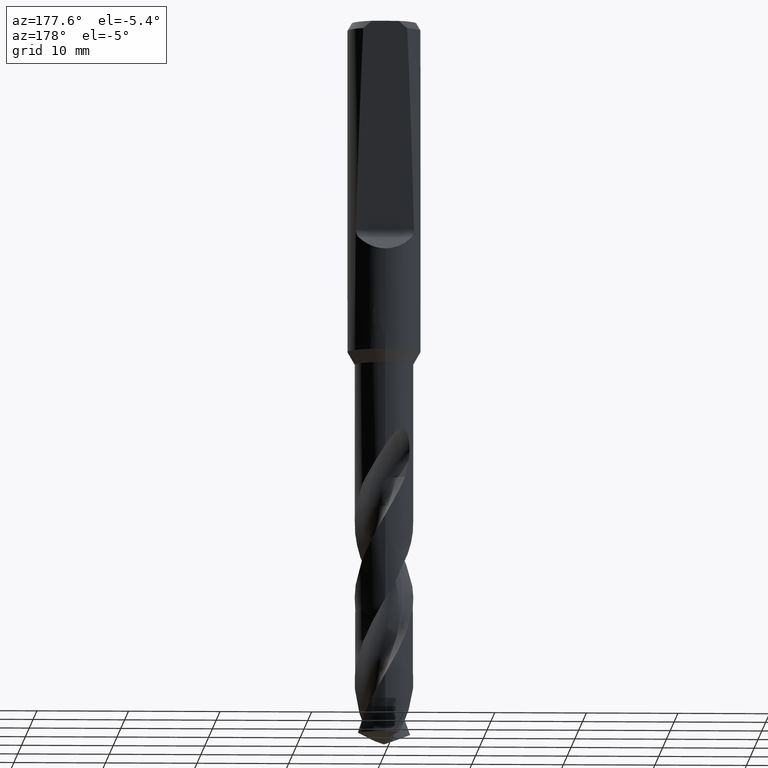
[diagram: clean part render]
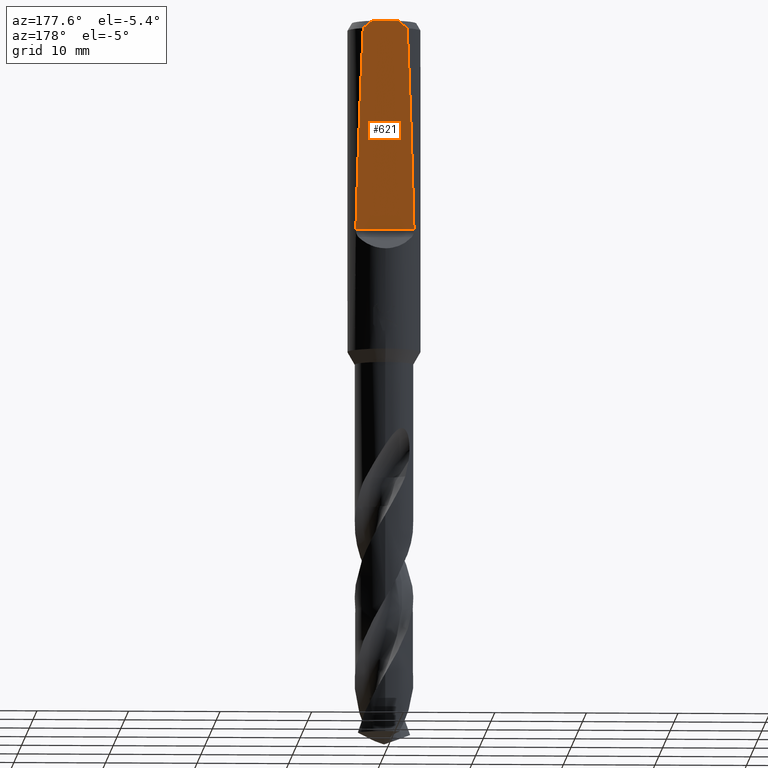
[diagram: same view with one face highlighted and labeled with its STEP entity id]
A machine part, auxiliary view. The second image highlights one B-rep face of the part: STEP entity #621.
In plain terms, the highlighted planar face has unit normal (0, -0.9994, 0.0349).
Its self-contained STEP definition (entity closure, byte-faithful):
#317=VERTEX_POINT('',#880);
#353=EDGE_CURVE('',#579,#459,#920,.T.);
#383=EDGE_CURVE('',#317,#719,#955,.T.);
#459=VERTEX_POINT('',#1037);
#531=VERTEX_POINT('',#1115);
#579=VERTEX_POINT('',#1167);
#621=ADVANCED_FACE('',(#1212),#1213,.F.);
#629=EDGE_CURVE('',#531,#711,#1221,.T.);
#641=EDGE_CURVE('',#711,#579,#1235,.T.);
#675=EDGE_CURVE('',#719,#531,#1271,.T.);
#711=VERTEX_POINT('',#1312);
#719=VERTEX_POINT('',#1320);
#823=EDGE_CURVE('',#459,#317,#1435,.T.);
#880=CARTESIAN_POINT('',(3.17557583065469,2.43222493691719,-22.8044492009967));
#920=ELLIPSE('',#2510,114.614833391376,4.0);
#955=ELLIPSE('',#3223,114.614833391376,4.0);
#1037=CARTESIAN_POINT('',(-3.17557583065469,2.43222493691719,-22.8044492009967));
#1115=CARTESIAN_POINT('',(1.44727416204323,3.22857385085146,0.0));
#1167=CARTESIAN_POINT('',(-2.39915011791252,3.20063723525806,-0.799999999999997));
#1212=FACE_OUTER_BOUND('',#4810,.T.);
#1213=PLANE('',#4811);
#1221=LINE('',#4862,#4863);
#1235=(B_SPLINE_CURVE(2,(#5094,#5095,#5096),.UNSPECIFIED.,.F.,.F.)B_SPLINE_CURVE_WITH_KNOTS((3,3),(0.0,1.24509248814237),.UNSPECIFIED.)RATIONAL_B_SPLINE_CURVE((1.0,1.00726161475639,1.0))BOUNDED_CURVE()REPRESENTATION_ITEM('')GEOMETRIC_REPRESENTATION_ITEM()CURVE());
#1271=(B_SPLINE_CURVE(2,(#5298,#5299,#5300),.UNSPECIFIED.,.F.,.F.)B_SPLINE_CURVE_WITH_KNOTS((3,3),(0.0,1.24509248814237),.UNSPECIFIED.)RATIONAL_B_SPLINE_CURVE((1.0,1.00726161475639,1.0))BOUNDED_CURVE()REPRESENTATION_ITEM('')GEOMETRIC_REPRESENTATION_ITEM()CURVE());
#1312=CARTESIAN_POINT('',(-1.44727416204323,3.22857385085146,0.0));
#1320=CARTESIAN_POINT('',(2.39915011791252,3.20063723525806,-0.799999999999997));
#1435=LINE('',#7474,#7475);
#2510=AXIS2_PLACEMENT_3D('',#7595,#7596,#7597);
#3223=AXIS2_PLACEMENT_3D('',#7649,#7650,#7651);
#4810=EDGE_LOOP('',(#7912,#7913,#7914,#7915,#7916,#7917));
#4811=AXIS2_PLACEMENT_3D('',#7918,#7919,#7920);
#4862=CARTESIAN_POINT('',(-2.0,3.22857385085146,1.77635683940025E-015));
#4863=VECTOR('',#7922,1.0);
#5094=CARTESIAN_POINT('',(-1.44727416204323,3.22857385085146,1.11022302462516E-016));
#5095=CARTESIAN_POINT('',(-1.89558220846588,3.21806228504891,-0.301011860721693));
#5096=CARTESIAN_POINT('',(-2.39915011791252,3.20063723525806,-0.799999999999997));
#5298=CARTESIAN_POINT('',(2.39915011791252,3.20063723525806,-0.799999999999997));
#5299=CARTESIAN_POINT('',(1.89558220846588,3.21806228504891,-0.301011860721693));
#5300=CARTESIAN_POINT('',(1.44727416204323,3.22857385085146,1.11022302462516E-016));
#7474=CARTESIAN_POINT('',(-4.0,2.43222493691719,-22.8044492009967));
#7475=VECTOR('',#8119,1.0);
#7595=CARTESIAN_POINT('',(0.0,0.0,-92.4542585355811));
#7596=DIRECTION('',(0.0,-0.999390827019096,0.0348994967025007));
#7597=DIRECTION('',(0.0,0.0348994967025007,0.999390827019096));
#7649=CARTESIAN_POINT('',(0.0,0.0,-92.4542585355811));
#7650=DIRECTION('',(0.0,-0.999390827019096,0.0348994967025007));
#7651=DIRECTION('',(0.0,0.0348994967025007,0.999390827019096));
#7912=ORIENTED_EDGE('',*,*,#353,.F.);
#7913=ORIENTED_EDGE('',*,*,#641,.F.);
#7914=ORIENTED_EDGE('',*,*,#629,.F.);
#7915=ORIENTED_EDGE('',*,*,#675,.F.);
#7916=ORIENTED_EDGE('',*,*,#383,.F.);
#7917=ORIENTED_EDGE('',*,*,#823,.F.);
#7918=CARTESIAN_POINT('',(-4.0,2.43222493691719,-22.8044492009967));
#7919=DIRECTION('',(0.0,-0.999390827019096,0.0348994967025007));
#7920=DIRECTION('',(0.0,-0.0348994967025007,-0.999390827019096));
#7922=DIRECTION('',(-1.0,0.0,0.0));
#8119=DIRECTION('',(1.0,0.0,0.0));